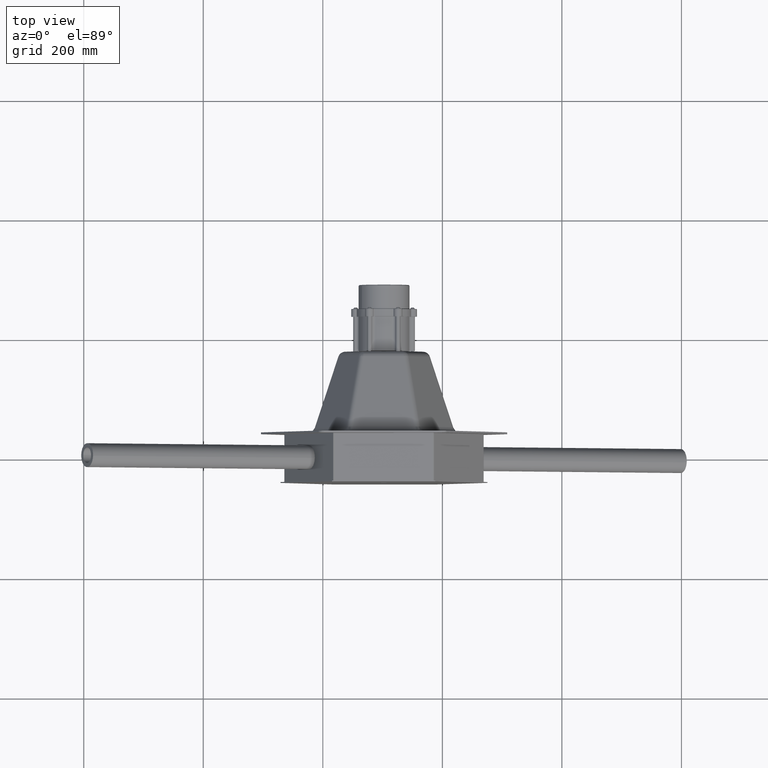
[diagram: clean part render]
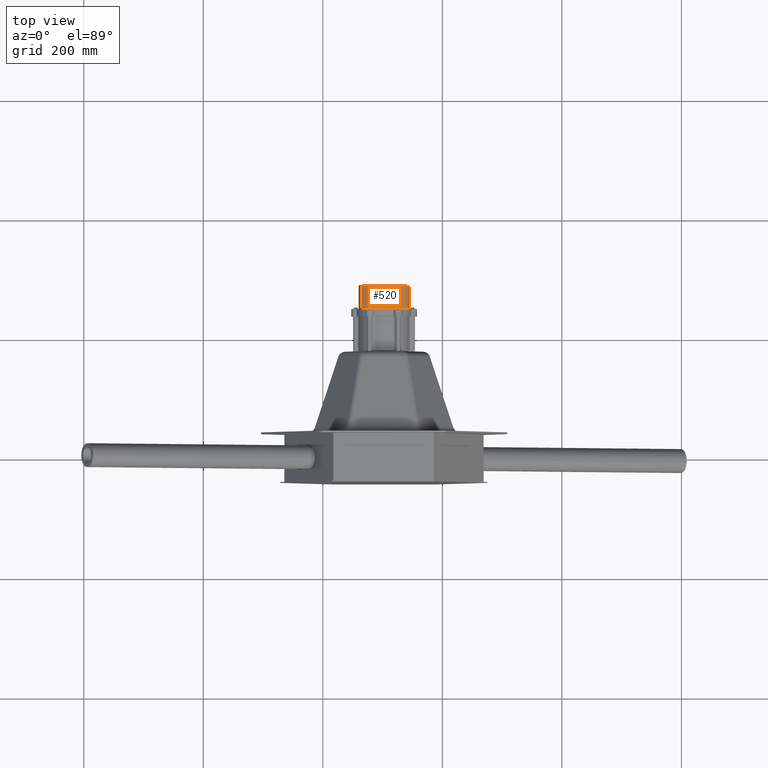
[diagram: same view with one face highlighted and labeled with its STEP entity id]
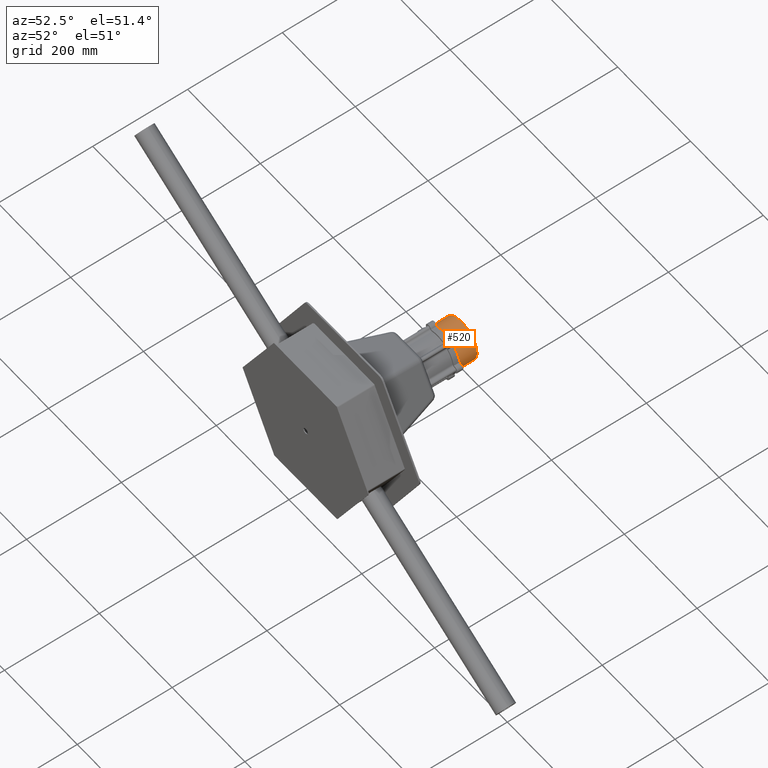
[diagram: same view with one face highlighted and labeled with its STEP entity id]
A machine part, top view. The second image highlights one B-rep face of the part: STEP entity #520.
A second angle (auxiliary view) of the same face is appended — the face is thin or edge-on in the first view.
In plain terms, the highlighted cylindrical surface (edge-blend (fillet) strip) has radius 42.5 mm, axis along (0, -1, 0).
Its self-contained STEP definition (entity closure, byte-faithful):
#157 = ORIENTED_EDGE ( 'NONE', *, *, #11061, .T. ) ;
#520 = ADVANCED_FACE ( 'NONE', ( #3412 ), #21625, .T. ) ;
#1140 = CIRCLE ( 'NONE', #24363, 42.50000000000004263 ) ;
#1887 = LINE ( 'NONE', #15525, #28665 ) ;
#3034 = ORIENTED_EDGE ( 'NONE', *, *, #21691, .T. ) ;
#3412 = FACE_OUTER_BOUND ( 'NONE', #30615, .T. ) ;
#3433 = DIRECTION ( 'NONE',  ( -2.465190328815661892E-31, -2.711709361697228081E-31, 1.000000000000000000 ) ) ;
#5328 = CIRCLE ( 'NONE', #16805, 42.50000000000004263 ) ;
#7471 = DIRECTION ( 'NONE',  ( -2.465190328815661892E-31, -2.711709361697228081E-31, 1.000000000000000000 ) ) ;
#8379 = ORIENTED_EDGE ( 'NONE', *, *, #14052, .T. ) ;
#9449 = CARTESIAN_POINT ( 'NONE',  ( -42.50000000000031264, -1.199803566456153074E-12, -4.000000000000003553 ) ) ;
#10413 = EDGE_CURVE ( 'NONE', #15880, #13274, #1887, .T. ) ;
#10456 = CARTESIAN_POINT ( 'NONE',  ( 42.49999999999972999, -1.209726763207186195E-12, -40.99999999999997868 ) ) ;
#10654 = CARTESIAN_POINT ( 'NONE',  ( -3.053113317719180486E-13, -1.207367539279857738E-12, -4.000000000000003553 ) ) ;
#11061 = EDGE_CURVE ( 'NONE', #24063, #33088, #16095, .T. ) ;
#12314 = CARTESIAN_POINT ( 'NONE',  ( 42.49999999999973710, -1.209726763207186195E-12, -4.000000000000003553 ) ) ;
#13214 = DIRECTION ( 'NONE',  ( 1.000000000000000000, -5.551115123125833239E-17, 0.0000000000000000000 ) ) ;
#13274 = VERTEX_POINT ( 'NONE', #9449 ) ;
#13580 = CARTESIAN_POINT ( 'NONE',  ( -2.775557561562891351E-13, -1.207367539279857738E-12, -40.99999999999997868 ) ) ;
#14052 = EDGE_CURVE ( 'NONE', #33088, #13274, #1140, .T. ) ;
#15525 = CARTESIAN_POINT ( 'NONE',  ( -42.50000000000031974, -1.199803566456153074E-12, -39.99999999999997868 ) ) ;
#15880 = VERTEX_POINT ( 'NONE', #16828 ) ;
#16095 = LINE ( 'NONE', #16269, #22930 ) ;
#16175 = DIRECTION ( 'NONE',  ( -1.000000000000000000, 5.551115123125833239E-17, 0.0000000000000000000 ) ) ;
#16269 = CARTESIAN_POINT ( 'NONE',  ( 42.49999999999976552, -1.209726763207186195E-12, -39.99999999999997868 ) ) ;
#16805 = AXIS2_PLACEMENT_3D ( 'NONE', #13580, #31606, #16175 ) ;
#16828 = CARTESIAN_POINT ( 'NONE',  ( -42.50000000000028422, -1.199803566456153074E-12, -40.99999999999997868 ) ) ;
#17671 = DIRECTION ( 'NONE',  ( 1.000000000000000000, -5.551115123125833239E-17, 0.0000000000000000000 ) ) ;
#19290 = ORIENTED_EDGE ( 'NONE', *, *, #10413, .F. ) ;
#21625 = CYLINDRICAL_SURFACE ( 'NONE', #30101, 42.50000000000004263 ) ;
#21691 = EDGE_CURVE ( 'NONE', #15880, #24063, #5328, .T. ) ;
#22817 = CARTESIAN_POINT ( 'NONE',  ( -2.775557561562891351E-13, -1.207367539279857738E-12, -39.99999999999997868 ) ) ;
#22930 = VECTOR ( 'NONE', #3433, 1000.000000000000000 ) ;
#24063 = VERTEX_POINT ( 'NONE', #10456 ) ;
#24363 = AXIS2_PLACEMENT_3D ( 'NONE', #10654, #28684, #13214 ) ;
#28665 = VECTOR ( 'NONE', #31085, 1000.000000000000000 ) ;
#28684 = DIRECTION ( 'NONE',  ( 2.465190328815661892E-31, 2.711709361697228081E-31, -1.000000000000000000 ) ) ;
#30101 = AXIS2_PLACEMENT_3D ( 'NONE', #22817, #7471, #17671 ) ;
#30615 = EDGE_LOOP ( 'NONE', ( #19290, #3034, #157, #8379 ) ) ;
#31085 = DIRECTION ( 'NONE',  ( -2.465190328815661892E-31, -2.711709361697228081E-31, 1.000000000000000000 ) ) ;
#31606 = DIRECTION ( 'NONE',  ( -2.465190328815661892E-31, -2.711709361697228081E-31, 1.000000000000000000 ) ) ;
#33088 = VERTEX_POINT ( 'NONE', #12314 ) ;